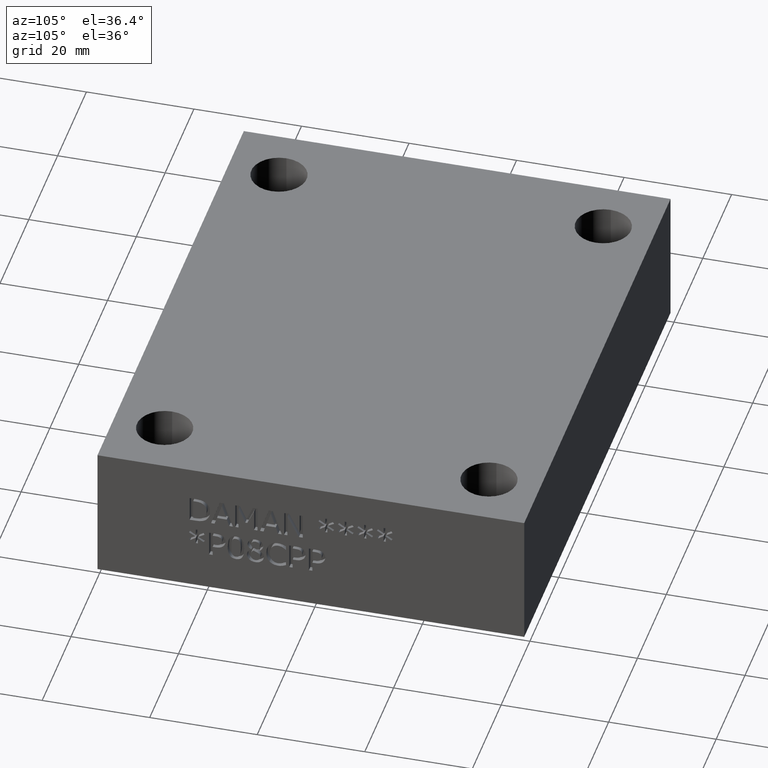
[diagram: clean part render]
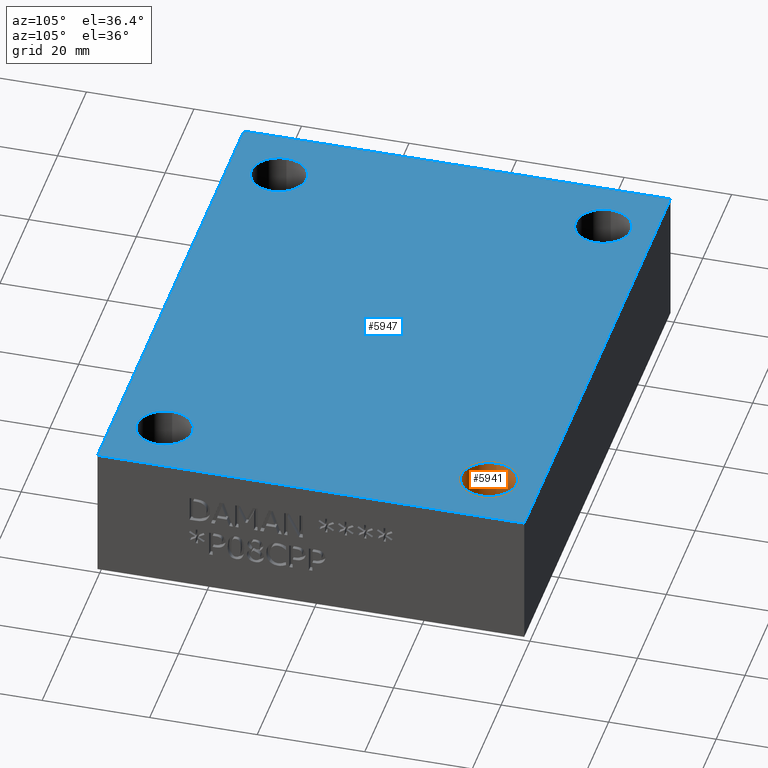
[diagram: same view with the hole feature highlighted: cylindrical wall and planar end face, labeled with their STEP entity ids]
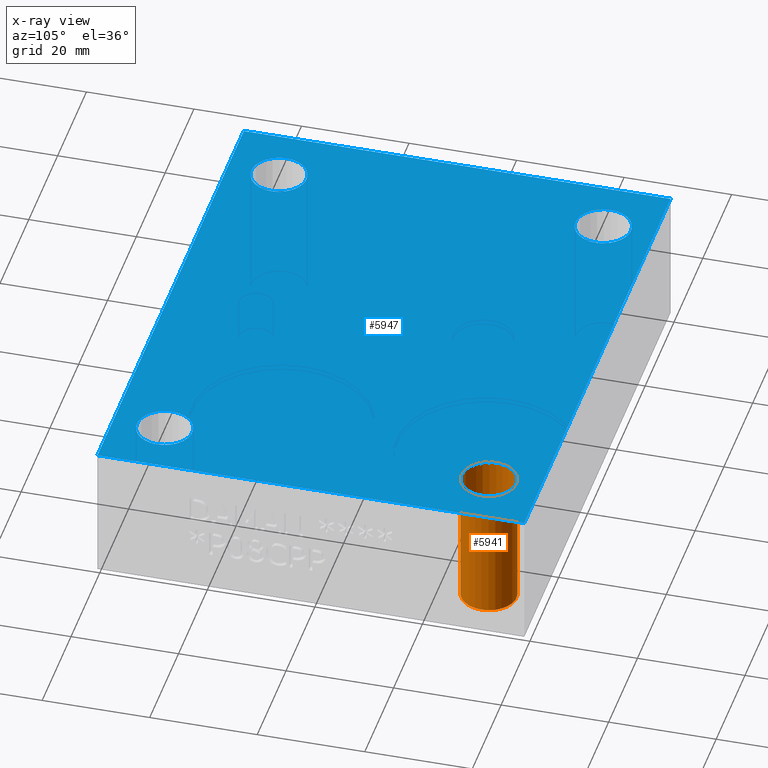
[diagram: x-ray of the same camera — body ghosted, the hole faces saturated]
A machine part, auxiliary view. The highlighted faces form one hole feature of diameter 10.3124 mm: the cylindrical wall (entity #5941, orange) and its adjacent planar end face (entity #5947, blue) — they share a circular edge in the B-rep.
The next image is the same camera in x-ray (body ghosted, the hole faces saturated) — the bore reads through the body.
Wall:
#46=CIRCLE('',#6204,5.1562);
#47=CIRCLE('',#6205,5.1562);
#48=CIRCLE('',#6206,5.1562);
#60=CYLINDRICAL_SURFACE('',#6203,5.1562);
#596=FACE_OUTER_BOUND('',#918,.T.);
#918=EDGE_LOOP('',(#5249,#5250,#5251,#5252,#5253));
#1546=LINE('',#9996,#2162);
#2162=VECTOR('',#7311,5.1562);
#2866=VERTEX_POINT('',#9991);
#2867=VERTEX_POINT('',#9992);
#2868=VERTEX_POINT('',#9995);
#3670=EDGE_CURVE('',#2866,#2867,#46,.T.);
#3671=EDGE_CURVE('',#2867,#2866,#47,.T.);
#3672=EDGE_CURVE('',#2867,#2868,#1546,.T.);
#3673=EDGE_CURVE('',#2868,#2868,#48,.T.);
#5249=ORIENTED_EDGE('',*,*,#3670,.F.);
#5250=ORIENTED_EDGE('',*,*,#3671,.F.);
#5251=ORIENTED_EDGE('',*,*,#3672,.T.);
#5252=ORIENTED_EDGE('',*,*,#3673,.F.);
#5253=ORIENTED_EDGE('',*,*,#3672,.F.);
#5941=ADVANCED_FACE('',(#596),#60,.F.);
#6203=AXIS2_PLACEMENT_3D('',#9990,#7305,#7306);
#6204=AXIS2_PLACEMENT_3D('',#9993,#7307,#7308);
#6205=AXIS2_PLACEMENT_3D('',#9994,#7309,#7310);
#6206=AXIS2_PLACEMENT_3D('',#9997,#7312,#7313);
#7305=DIRECTION('center_axis',(0.,0.,-1.));
#7306=DIRECTION('ref_axis',(1.,0.,0.));
#7307=DIRECTION('center_axis',(0.,0.,1.));
#7308=DIRECTION('ref_axis',(1.,0.,0.));
#7309=DIRECTION('center_axis',(0.,0.,1.));
#7310=DIRECTION('ref_axis',(1.,0.,0.));
#7311=DIRECTION('',(0.,0.,1.));
#7312=DIRECTION('center_axis',(0.,0.,-1.));
#7313=DIRECTION('ref_axis',(1.,0.,0.));
#9990=CARTESIAN_POINT('Origin',(90.5002,69.85,131.40818324975));
#9991=CARTESIAN_POINT('',(95.6564,69.85,0.));
#9992=CARTESIAN_POINT('',(85.344,69.85,0.));
#9993=CARTESIAN_POINT('Origin',(90.5002,69.85,0.));
#9994=CARTESIAN_POINT('Origin',(90.5002,69.85,0.));
#9995=CARTESIAN_POINT('',(85.344,69.85,25.4));
#9996=CARTESIAN_POINT('',(85.344,69.85,131.40818324975));
#9997=CARTESIAN_POINT('Origin',(90.5002,69.85,25.4));
End face:
#42=CIRCLE('',#6198,5.1562);
#45=CIRCLE('',#6202,5.1562);
#48=CIRCLE('',#6206,5.1562);
#51=CIRCLE('',#6210,5.1562);
#87=FACE_BOUND('',#925,.T.);
#88=FACE_BOUND('',#926,.T.);
#89=FACE_BOUND('',#927,.T.);
#90=FACE_BOUND('',#928,.T.);
#305=PLANE('',#6215);
#602=FACE_OUTER_BOUND('',#924,.T.);
#924=EDGE_LOOP('',(#5274,#5275,#5276,#5277));
#925=EDGE_LOOP('',(#5278));
#926=EDGE_LOOP('',(#5279));
#927=EDGE_LOOP('',(#5280));
#928=EDGE_LOOP('',(#5281));
#1157=LINE('',#8995,#1773);
#1550=LINE('',#10013,#2166);
#1553=LINE('',#10017,#2169);
#1555=LINE('',#10021,#2171);
#1773=VECTOR('',#6548,10.);
#2166=VECTOR('',#7327,10.);
#2169=VECTOR('',#7332,10.);
#2171=VECTOR('',#7338,10.);
#2570=VERTEX_POINT('',#8992);
#2571=VERTEX_POINT('',#8994);
#2862=VERTEX_POINT('',#9979);
#2865=VERTEX_POINT('',#9987);
#2868=VERTEX_POINT('',#9995);
#2871=VERTEX_POINT('',#10003);
#2874=VERTEX_POINT('',#10010);
#2875=VERTEX_POINT('',#10012);
#3235=EDGE_CURVE('',#2571,#2570,#1157,.T.);
#3665=EDGE_CURVE('',#2862,#2862,#42,.T.);
#3669=EDGE_CURVE('',#2865,#2865,#45,.T.);
#3673=EDGE_CURVE('',#2868,#2868,#48,.T.);
#3677=EDGE_CURVE('',#2871,#2871,#51,.T.);
#3680=EDGE_CURVE('',#2875,#2874,#1550,.T.);
#3683=EDGE_CURVE('',#2570,#2875,#1553,.T.);
#3685=EDGE_CURVE('',#2874,#2571,#1555,.T.);
#5274=ORIENTED_EDGE('',*,*,#3685,.T.);
#5275=ORIENTED_EDGE('',*,*,#3235,.T.);
#5276=ORIENTED_EDGE('',*,*,#3683,.T.);
#5277=ORIENTED_EDGE('',*,*,#3680,.T.);
#5278=ORIENTED_EDGE('',*,*,#3665,.T.);
#5279=ORIENTED_EDGE('',*,*,#3669,.T.);
#5280=ORIENTED_EDGE('',*,*,#3673,.T.);
#5281=ORIENTED_EDGE('',*,*,#3677,.T.);
#5947=ADVANCED_FACE('',(#602,#87,#88,#89,#90),#305,.T.);
#6198=AXIS2_PLACEMENT_3D('',#9981,#7294,#7295);
#6202=AXIS2_PLACEMENT_3D('',#9989,#7303,#7304);
#6206=AXIS2_PLACEMENT_3D('',#9997,#7312,#7313);
#6210=AXIS2_PLACEMENT_3D('',#10005,#7321,#7322);
#6215=AXIS2_PLACEMENT_3D('',#10022,#7339,#7340);
#6548=DIRECTION('',(0.,1.,0.));
#7294=DIRECTION('center_axis',(0.,0.,-1.));
#7295=DIRECTION('ref_axis',(1.,0.,0.));
#7303=DIRECTION('center_axis',(0.,0.,-1.));
#7304=DIRECTION('ref_axis',(1.,0.,0.));
#7312=DIRECTION('center_axis',(0.,0.,-1.));
#7313=DIRECTION('ref_axis',(1.,0.,0.));
#7321=DIRECTION('center_axis',(0.,0.,-1.));
#7322=DIRECTION('ref_axis',(1.,0.,0.));
#7327=DIRECTION('',(0.,-1.,0.));
#7332=DIRECTION('',(-1.,0.,0.));
#7338=DIRECTION('',(1.,0.,0.));
#7339=DIRECTION('center_axis',(0.,0.,1.));
#7340=DIRECTION('ref_axis',(1.,0.,0.));
#8992=CARTESIAN_POINT('',(101.6,79.375,25.4));
#8994=CARTESIAN_POINT('',(101.6,0.,25.4));
#8995=CARTESIAN_POINT('',(101.6,0.,25.4));
#9979=CARTESIAN_POINT('',(85.344,9.52500000000001,25.4));
#9981=CARTESIAN_POINT('Origin',(90.5002,9.52500000000001,25.4));
#9987=CARTESIAN_POINT('',(5.969,69.85,25.4));
#9989=CARTESIAN_POINT('Origin',(11.1252,69.85,25.4));
#9995=CARTESIAN_POINT('',(85.344,69.85,25.4));
#9997=CARTESIAN_POINT('Origin',(90.5002,69.85,25.4));
#10003=CARTESIAN_POINT('',(5.969,9.52500000000001,25.4));
#10005=CARTESIAN_POINT('Origin',(11.1252,9.52500000000001,25.4));
#10010=CARTESIAN_POINT('',(0.,0.,25.4));
#10012=CARTESIAN_POINT('',(0.,79.375,25.4));
#10013=CARTESIAN_POINT('',(0.,79.375,25.4));
#10017=CARTESIAN_POINT('',(101.6,79.375,25.4));
#10021=CARTESIAN_POINT('',(0.,0.,25.4));
#10022=CARTESIAN_POINT('Origin',(50.8,39.6875,25.4));